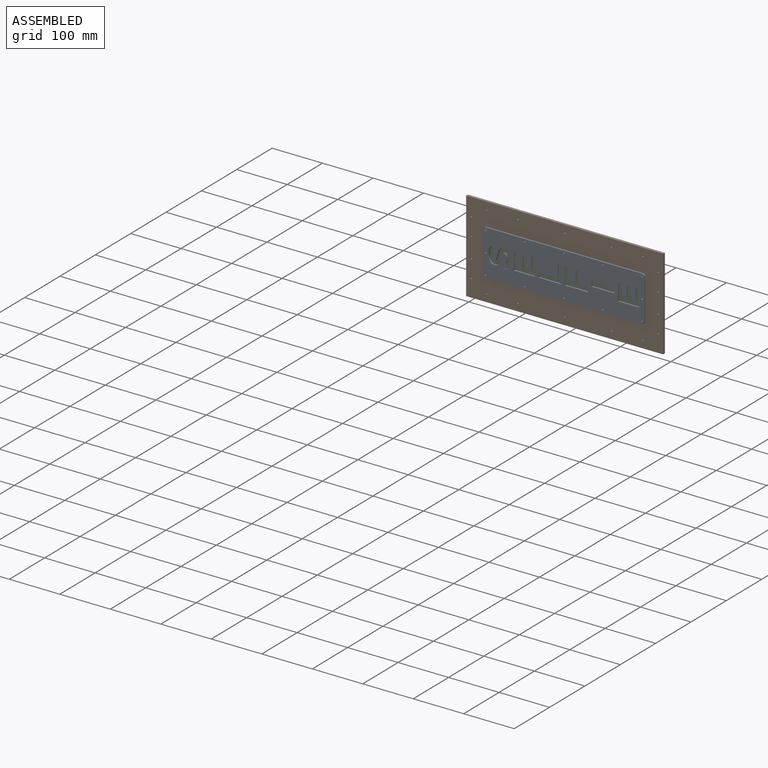
[diagram: assembled view]
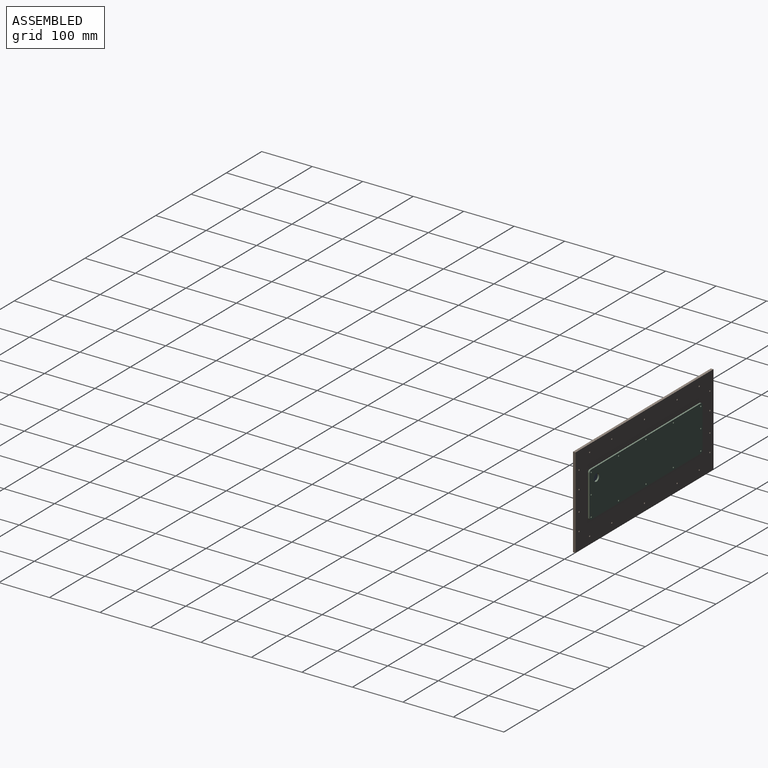
[diagram: assembled view, second angle]
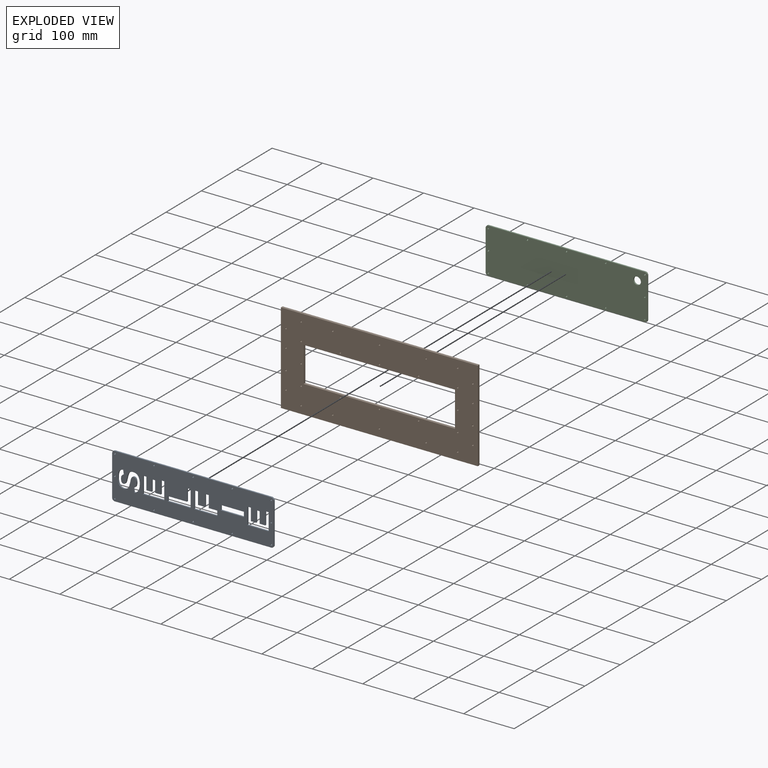
[diagram: exploded view]
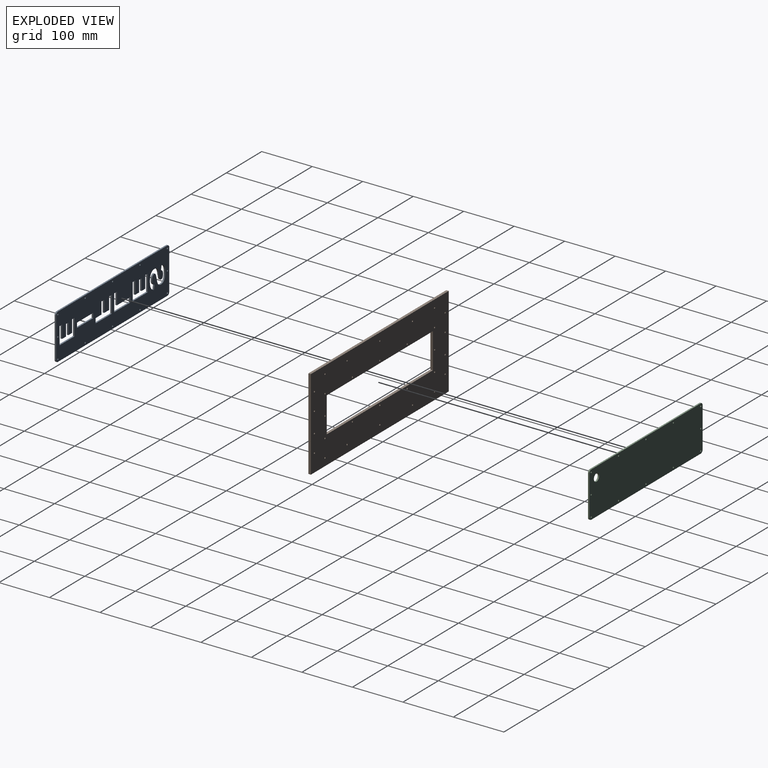
[diagram: exploded view, second angle]
ASSEMBLY  parts=3 mates=6
PART A: 97 faces, bbox 90x3x320 mm
  f0: plane 320x90mm, normal (0,-1,0), area 24326.8mm2, adj f2,f3,f4,f5,f6,f7,f8,f9
  f1: plane 320x90mm, normal (0,1,0), area 24326.8mm2, adj f2,f3,f4,f5,f6,f7,f8,f9
  f2: plane 310x3mm, normal (1,0,0), area 930mm2, adj f0,f1,f93,f96
  f3: plane 80x3mm, normal (0,0,1), area 240mm2, adj f0,f1,f93,f94
  f4: plane 310x3mm, normal (-1,0,0), area 930mm2, adj f0,f1,f94,f95
  f5: cylinder r=1.5mm len=3mm, axis (0,1,0), area 28.3mm2, adj f0,f1
  f6: cylinder r=1.5mm len=3mm, axis (0,1,0), area 28.3mm2, adj f0,f1
  f7: cylinder r=1.5mm len=3mm, axis (0,1,0), area 28.3mm2, adj f0,f1
  f8: cylinder r=1.5mm len=3mm, axis (0,1,0), area 28.3mm2, adj f0,f1
  f9: cylinder r=1.5mm len=3mm, axis (0,1,0), area 28.3mm2, adj f0,f1
  f10: cylinder r=1.5mm len=3mm, axis (0,1,0), area 28.3mm2, adj f0,f1
  f11: cylinder r=1.5mm len=3mm, axis (0,1,0), area 28.3mm2, adj f0,f1
  f12: cylinder r=1.5mm len=3mm, axis (0,1,0), area 28.3mm2, adj f0,f1
  f13: cylinder r=1.5mm len=3mm, axis (0,1,0), area 28.3mm2, adj f0,f1
  f14: cylinder r=1.5mm len=3mm, axis (0,1,0), area 28.3mm2, adj f0,f1
  f15: cylinder r=1.5mm len=3mm, axis (0,1,0), area 28.3mm2, adj f0,f1
  f16: plane 80x3mm, normal (0,0,-1), area 240mm2, adj f0,f1,f95,f96
  f17: cylinder r=1.5mm len=3mm, axis (0,1,0), area 28.3mm2, adj f0,f1
  f18: plane 42.11x3mm, normal (1,0,0), area 126.3mm2, adj f0,f1,f19,f29
  f19: plane 34.34x3mm, normal (0,0,1), area 103mm2, adj f0,f1,f18,f20
  f20: plane 6.82x3mm, normal (-1,0,0), area 20.5mm2, adj f0,f1,f19,f21
  f21: plane 25.52x3mm, normal (0,0,-1), area 76.6mm2, adj f0,f1,f20,f22
  f22: plane 11.08x3mm, normal (-1,0,0), area 33.3mm2, adj f0,f1,f21,f23
  f23: plane 22.47x3mm, normal (0,0,1), area 67.4mm2, adj f0,f1,f22,f24
  f24: plane 6.81x3mm, normal (-1,0,0), area 20.4mm2, adj f0,f1,f23,f25
  f25: plane 22.47x3mm, normal (0,0,-1), area 67.4mm2, adj f0,f1,f24,f26
  f26: plane 10.59x3mm, normal (-1,0,0), area 31.8mm2, adj f0,f1,f25,f27
  f27: plane 24.3x3mm, normal (0,0,1), area 72.9mm2, adj f0,f1,f26,f28
  f28: plane 6.81x3mm, normal (-1,0,0), area 20.4mm2, adj f0,f1,f27,f29
  f29: plane 33.12x3mm, normal (0,0,-1), area 99.3mm2, adj f0,f1,f18,f28
  f30: plane 45.21x3mm, normal (1,0,0), area 135.6mm2, adj f0,f1,f31,f35
  f31: plane 33.73x3mm, normal (0,0,1), area 101.2mm2, adj f0,f1,f30,f32
  f32: plane 7.32x3mm, normal (-1,0,0), area 22mm2, adj f0,f1,f31,f33
  f33: plane 24.26x3mm, normal (0,0,-1), area 72.8mm2, adj f0,f1,f32,f34
  f34: plane 37.88x3mm, normal (-1,0,0), area 113.7mm2, adj f0,f1,f33,f35
  f35: plane 9.47x3mm, normal (0,0,-1), area 28.4mm2, adj f0,f1,f30,f34
  f36: plane 14.12x3mm, normal (-1,0,0), area 42.4mm2, adj f0,f1,f37,f45
  f37: plane 24.09x3mm, normal (0,0,1), area 72.3mm2, adj f0,f1,f36,f38
  f38: plane 7.38x3mm, normal (-1,0,0), area 22.1mm2, adj f0,f1,f37,f39
  f39: plane 33.64x3mm, normal (0,0,-1), area 100.9mm2, adj f0,f1,f38,f40
  f40: plane 45.62x3mm, normal (1,0,0), area 136.9mm2, adj f0,f1,f39,f41
  f41: plane 9.55x3mm, normal (0,0,1), area 28.7mm2, adj f0,f1,f40,f42
  f42: plane 16.74x3mm, normal (-1,0,0), area 50.2mm2, adj f0,f1,f41,f43
  f43: plane 23.34x3mm, normal (0,0,1), area 70mm2, adj f0,f1,f42,f44
  f44: plane 7.38x3mm, normal (-1,0,0), area 22.1mm2, adj f0,f1,f43,f45
  f45: plane 23.34x3mm, normal (0,0,-1), area 70mm2, adj f0,f1,f36,f44
  f46: plane 42.11x3mm, normal (1,0,0), area 126.3mm2, adj f0,f1,f47,f57
  f47: plane 34.34x3mm, normal (0,0,1), area 103mm2, adj f0,f1,f46,f48
  f48: plane 6.82x3mm, normal (-1,0,0), area 20.5mm2, adj f0,f1,f47,f49
  f49: plane 25.52x3mm, normal (0,0,-1), area 76.6mm2, adj f0,f1,f48,f50
  f50: plane 11.08x3mm, normal (-1,0,0), area 33.3mm2, adj f0,f1,f49,f51
  f51: plane 22.47x3mm, normal (0,0,1), area 67.4mm2, adj f0,f1,f50,f52
  f52: plane 6.81x3mm, normal (-1,0,0), area 20.4mm2, adj f0,f1,f51,f53
  f53: plane 22.47x3mm, normal (0,0,-1), area 67.4mm2, adj f0,f1,f52,f54
  f54: plane 10.59x3mm, normal (-1,0,0), area 31.8mm2, adj f0,f1,f53,f55
  f55: plane 24.3x3mm, normal (0,0,1), area 72.9mm2, adj f0,f1,f54,f56
  f56: plane 6.81x3mm, normal (-1,0,0), area 20.4mm2, adj f0,f1,f55,f57
  f57: plane 33.12x3mm, normal (0,0,-1), area 99.3mm2, adj f0,f1,f46,f56
  f58: plane 45.62x3mm, normal (1,0,0), area 136.9mm2, adj f0,f1,f59,f61
  f59: plane 9.55x3mm, normal (0,0,1), area 28.7mm2, adj f0,f1,f58,f60
  f60: plane 45.62x3mm, normal (-1,0,0), area 136.9mm2, adj f0,f1,f59,f61
  f61: plane 9.55x3mm, normal (0,0,-1), area 28.7mm2, adj f0,f1,f58,f60
  f62: extruded ~9.46x4.59mm, area 32.9mm2, adj f0,f1,f63,f92
  f63: extruded ~4.65x3mm, area 14.2mm2, adj f0,f1,f62,f64
  f64: extruded ~3.47x3mm, area 12.6mm2, adj f0,f1,f63,f65
  f65: extruded ~4.14x3mm, area 14.7mm2, adj f0,f1,f64,f66
  f66: extruded ~8.68x3mm, area 27mm2, adj f0,f1,f65,f67
  f67: extruded ~6.78x3mm, area 21.1mm2, adj f0,f1,f66,f68
  f68: extruded ~3x2.52mm, area 9.4mm2, adj f0,f1,f67,f69
  f69: extruded ~3x2.69mm, area 8.6mm2, adj f0,f1,f68,f70
  f70: extruded ~8x5.02mm, area 32mm2, adj f0,f1,f69,f71
  f71: extruded ~5.79x3mm, area 18.1mm2, adj f0,f1,f70,f72
  f72: extruded ~4.09x3mm, area 15mm2, adj f0,f1,f71,f73
  f73: plane 8.55x3mm, normal (-0.14,0,0.99), area 25.9mm2, adj f0,f1,f72,f74
  f74: extruded ~8.1x5.06mm, area 29.5mm2, adj f0,f1,f73,f75
  f75: extruded ~11.76x3mm, area 36.5mm2, adj f0,f1,f74,f76
  f76: extruded ~12.48x3.04mm, area 39.1mm2, adj f0,f1,f75,f77
  f77: extruded ~8.74x4.29mm, area 30.4mm2, adj f0,f1,f76,f78
  f78: extruded ~3.98x3mm, area 12.1mm2, adj f0,f1,f77,f79
  f79: extruded ~3.02x3mm, area 10.3mm2, adj f0,f1,f78,f80
  f80: extruded ~3x2.54mm, area 10.1mm2, adj f0,f1,f79,f81
  f81: extruded ~3.35x3mm, area 11.1mm2, adj f0,f1,f80,f82
  f82: extruded ~6.57x3mm, area 20.4mm2, adj f0,f1,f81,f83
  f83: extruded ~7.4x3mm, area 22.9mm2, adj f0,f1,f82,f84
  f84: extruded ~3x2.99mm, area 10.8mm2, adj f0,f1,f83,f85
  f85: extruded ~3x2.96mm, area 9.6mm2, adj f0,f1,f84,f86
  f86: extruded ~9.24x5.62mm, area 36.6mm2, adj f0,f1,f85,f87
  f87: extruded ~6.96x3mm, area 21.6mm2, adj f0,f1,f86,f88
  f88: extruded ~4.86x3.38mm, area 18.2mm2, adj f0,f1,f87,f89
  f89: plane 8.52x3mm, normal (0.16,0,-0.99), area 25.9mm2, adj f0,f1,f88,f90
  f90: extruded ~8.7x5.92mm, area 32.4mm2, adj f0,f1,f89,f91
  f91: extruded ~12.7x3mm, area 39.6mm2, adj f0,f1,f90,f92
  f92: extruded ~13.46x3.28mm, area 42.2mm2, adj f0,f1,f62,f91
  f93: cylinder r=5mm len=5mm, axis (0,-1,0), area 23.6mm2, adj f0,f1,f2,f3
  f94: cylinder r=5mm len=5mm, axis (0,1,0), area 23.6mm2, adj f0,f1,f3,f4
  f95: cylinder r=5mm len=5mm, axis (0,-1,0), area 23.6mm2, adj f0,f1,f4,f16
  f96: cylinder r=5mm len=5mm, axis (0,1,0), area 23.6mm2, adj f0,f1,f2,f16
PART B: 40 faces, bbox 390x5x180 mm
  f0: plane 390x180mm, normal (0,-1,0), area 48987.9mm2, adj f2,f3,f4,f5,f6,f7,f8,f9
  f1: plane 390x180mm, normal (0,1,0), area 48987.9mm2, adj f2,f3,f4,f5,f6,f7,f8,f9
  f2: plane 180x5mm, normal (1,0,0), area 900mm2, adj f0,f1,f3,f5
  f3: plane 390x5mm, normal (0,0,1), area 1950mm2, adj f0,f1,f2,f4
  f4: plane 180x5mm, normal (-1,0,0), area 900mm2, adj f0,f1,f3,f5
  f5: plane 390x5mm, normal (0,0,-1), area 1950mm2, adj f0,f1,f2,f4
  f6: cylinder r=1.5mm len=5mm, axis (0,1,0), area 47.1mm2, adj f0,f1
  f7: cylinder r=1.5mm len=5mm, axis (0,1,0), area 47.1mm2, adj f0,f1
  f8: cylinder r=1.5mm len=5mm, axis (0,1,0), area 47.1mm2, adj f0,f1
  f9: cylinder r=1.5mm len=5mm, axis (0,1,0), area 47.1mm2, adj f0,f1
  f10: cylinder r=1.5mm len=5mm, axis (0,1,0), area 47.1mm2, adj f0,f1
  f11: cylinder r=1.5mm len=5mm, axis (0,1,0), area 47.1mm2, adj f0,f1
  f12: cylinder r=1.5mm len=5mm, axis (0,1,0), area 47.1mm2, adj f0,f1
  f13: cylinder r=1.5mm len=5mm, axis (0,1,0), area 47.1mm2, adj f0,f1
  f14: cylinder r=1.5mm len=5mm, axis (0,1,0), area 47.1mm2, adj f0,f1
  f15: cylinder r=1.5mm len=5mm, axis (0,1,0), area 47.1mm2, adj f0,f1
  f16: cylinder r=1.5mm len=5mm, axis (0,1,0), area 47.1mm2, adj f0,f1
  f17: cylinder r=1.5mm len=5mm, axis (0,1,0), area 47.1mm2, adj f0,f1
  f18: cylinder r=1.5mm len=5mm, axis (0,1,0), area 47.1mm2, adj f0,f1
  f19: cylinder r=1.5mm len=5mm, axis (0,1,0), area 47.1mm2, adj f0,f1
  f20: cylinder r=1.5mm len=5mm, axis (0,1,0), area 47.1mm2, adj f0,f1
  f21: cylinder r=1.5mm len=5mm, axis (0,1,0), area 47.1mm2, adj f0,f1
  f22: cylinder r=1.5mm len=5mm, axis (0,1,0), area 47.1mm2, adj f0,f1
  f23: cylinder r=1.5mm len=5mm, axis (0,1,0), area 47.1mm2, adj f0,f1
  f24: plane 70x5mm, normal (1,0,0), area 350mm2, adj f0,f1,f25,f27
  f25: plane 300x5mm, normal (0,0,-1), area 1500mm2, adj f0,f1,f24,f26
  f26: plane 70x5mm, normal (-1,0,0), area 350mm2, adj f0,f1,f25,f27
  f27: plane 300x5mm, normal (0,0,1), area 1500mm2, adj f0,f1,f24,f26
  f28: cylinder r=1.5mm len=5mm, axis (0,1,0), area 47.1mm2, adj f0,f1
  f29: cylinder r=1.5mm len=5mm, axis (0,1,0), area 47.1mm2, adj f0,f1
  f30: cylinder r=1.5mm len=5mm, axis (0,1,0), area 47.1mm2, adj f0,f1
  f31: cylinder r=1.5mm len=5mm, axis (0,1,0), area 47.1mm2, adj f0,f1
  f32: cylinder r=1.5mm len=5mm, axis (0,1,0), area 47.1mm2, adj f0,f1
  f33: cylinder r=1.5mm len=5mm, axis (0,1,0), area 47.1mm2, adj f0,f1
  f34: cylinder r=1.5mm len=5mm, axis (0,1,0), area 47.1mm2, adj f0,f1
  f35: cylinder r=1.5mm len=5mm, axis (0,1,0), area 47.1mm2, adj f0,f1
  f36: cylinder r=1.5mm len=5mm, axis (0,1,0), area 47.1mm2, adj f0,f1
  f37: cylinder r=1.5mm len=5mm, axis (0,1,0), area 47.1mm2, adj f0,f1
  f38: cylinder r=1.5mm len=5mm, axis (0,1,0), area 47.1mm2, adj f0,f1
  f39: cylinder r=1.5mm len=5mm, axis (0,1,0), area 47.1mm2, adj f0,f1
PART C: 23 faces, bbox 90x3x320 mm
  f0: plane 310x3mm, normal (1,0,0), area 930mm2, adj f16,f17,f18,f21
  f1: plane 80x3mm, normal (0,0,1), area 240mm2, adj f16,f17,f18,f19
  f2: plane 310x3mm, normal (-1,0,0), area 930mm2, adj f16,f17,f19,f20
  f3: cylinder r=1.5mm len=3mm, axis (0,1,0), area 28.3mm2, adj f16,f17
  f4: cylinder r=1.5mm len=3mm, axis (0,1,0), area 28.3mm2, adj f16,f17
  f5: cylinder r=1.5mm len=3mm, axis (0,1,0), area 28.3mm2, adj f16,f17
  f6: cylinder r=1.5mm len=3mm, axis (0,1,0), area 28.3mm2, adj f16,f17
  f7: cylinder r=1.5mm len=3mm, axis (0,1,0), area 28.3mm2, adj f16,f17
  f8: cylinder r=1.5mm len=3mm, axis (0,1,0), area 28.3mm2, adj f16,f17
  f9: cylinder r=1.5mm len=3mm, axis (0,1,0), area 28.3mm2, adj f16,f17
  f10: cylinder r=1.5mm len=3mm, axis (0,1,0), area 28.3mm2, adj f16,f17
  f11: cylinder r=1.5mm len=3mm, axis (0,1,0), area 28.3mm2, adj f16,f17
  f12: cylinder r=1.5mm len=3mm, axis (0,1,0), area 28.3mm2, adj f16,f17
  f13: cylinder r=1.5mm len=3mm, axis (0,1,0), area 28.3mm2, adj f16,f17
  f14: plane 80x3mm, normal (0,0,-1), area 240mm2, adj f16,f17,f20,f21
  f15: cylinder r=1.5mm len=3mm, axis (0,1,0), area 28.3mm2, adj f16,f17
  f16: plane 320x90mm, normal (0,-1,0), area 28517mm2, adj f0,f1,f2,f3,f4,f5,f6,f7
  f17: plane 320x90mm, normal (0,1,0), area 28517mm2, adj f0,f1,f2,f3,f4,f5,f6,f7
  f18: cylinder r=5mm len=5mm, axis (0,-1,0), area 23.6mm2, adj f0,f1,f16,f17
  f19: cylinder r=5mm len=5mm, axis (0,1,0), area 23.6mm2, adj f1,f2,f16,f17
  f20: cylinder r=5mm len=5mm, axis (0,-1,0), area 23.6mm2, adj f2,f14,f16,f17
  f21: cylinder r=5mm len=5mm, axis (0,1,0), area 23.6mm2, adj f0,f14,f16,f17
  f22: cylinder r=7.5mm len=15mm, axis (0,1,0), area 141.4mm2, adj f16,f17
PLACE A rot(axis=(0,-1,0),90deg) t=(-213.25,304.12,47.62)mm
PLACE B t=(-213.25,309.12,47.62)mm fixed
PLACE C rot(axis=(0,1,0),90deg) t=(-213.25,312.12,47.62)mm
MATE cylindrical C.f13 <-> B.f39  axis (0,1,0) through (-368.25,310.62,87.62)mm
MATE cylindrical A.f12 <-> B.f38  axis (0,1,0) through (-368.25,302.62,7.62)mm
MATE cylindrical B.f39 <-> A.f10  axis (0,1,0) through (-368.25,306.62,87.62)mm
MATE planar B.f1 <-> C.f16  axis (0,1,0) through (-213.25,309.12,47.62)mm
MATE cylindrical C.f11 <-> B.f38  axis (0,1,0) through (-368.25,310.62,7.62)mm
MATE planar A.f1 <-> B.f0  axis (0,1,0) through (-212.4,304.12,48.22)mm
